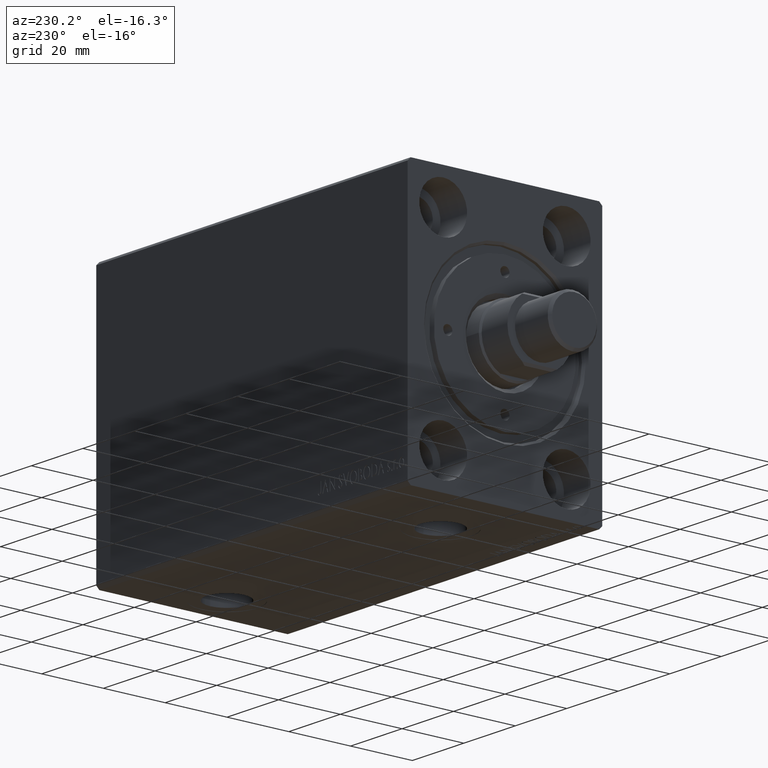
[diagram: clean part render]
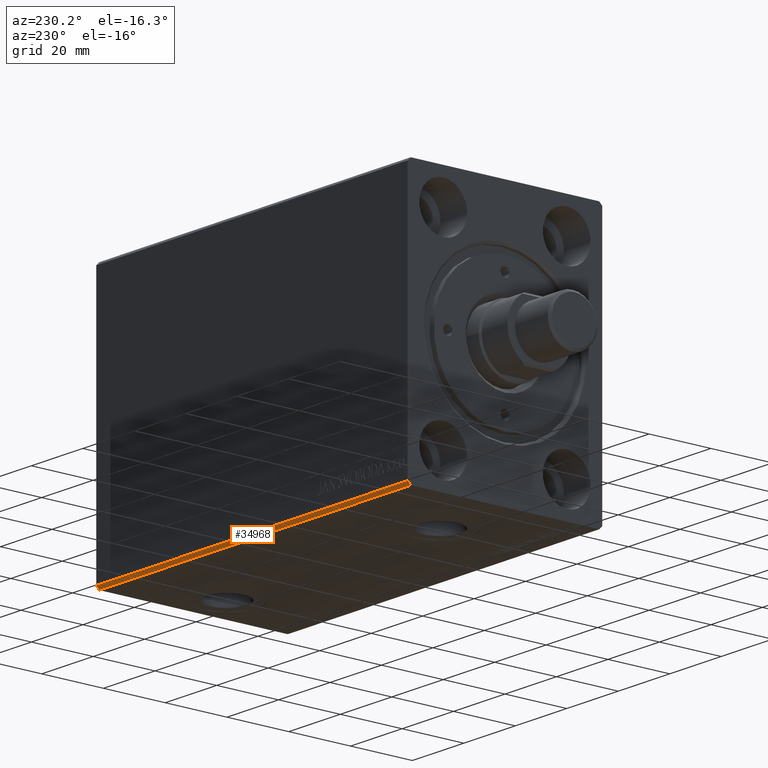
[diagram: same view with one face highlighted and labeled with its STEP entity id]
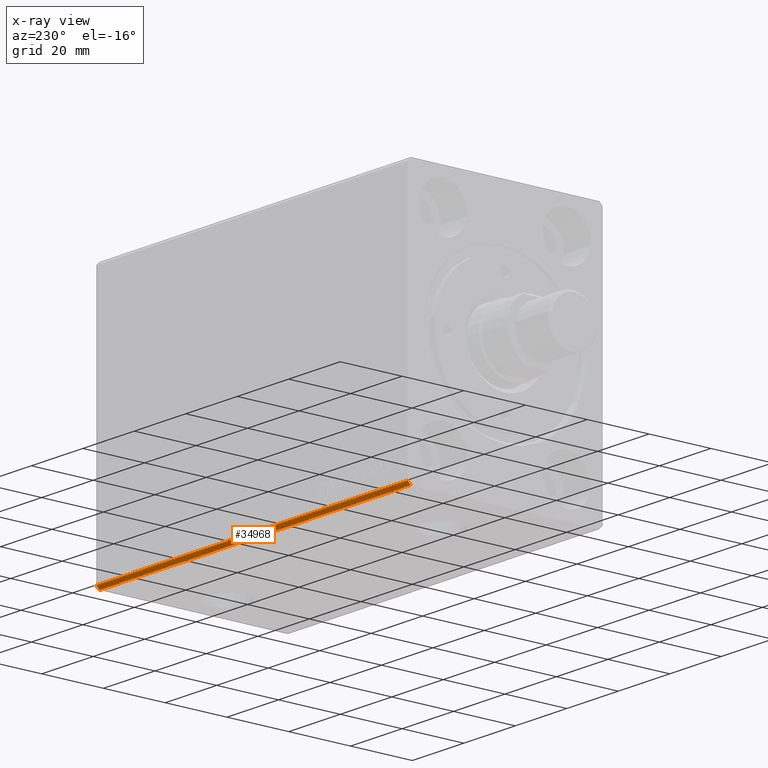
[diagram: x-ray of the same camera — body ghosted, the highlighted face saturated]
A machine part, auxiliary view. The second image highlights one B-rep face of the part: STEP entity #34968.
The next image is the same camera in x-ray: the body ghosted, the highlighted face saturated — about 0% of this face is hidden behind the body in this view.
In plain terms, the highlighted planar face has unit normal (0, -0.7071, 0.7071).
Its self-contained STEP definition (entity closure, byte-faithful):
#689 = VERTEX_POINT ( 'NONE', #42933 ) ;
#3563 = CARTESIAN_POINT ( 'NONE',  ( 121.0000000000000000, 30.50000000000001776, -42.50000000000000711 ) ) ;
#3857 = LINE ( 'NONE', #17568, #8601 ) ;
#4426 = ORIENTED_EDGE ( 'NONE', *, *, #31355, .T. ) ;
#4485 = VECTOR ( 'NONE', #43651, 1000.000000000000000 ) ;
#4505 = DIRECTION ( 'NONE',  ( 0.000000000000000000, 0.7071067811865462405, 0.7071067811865489050 ) ) ;
#5184 = FACE_OUTER_BOUND ( 'NONE', #5286, .T. ) ;
#5286 = EDGE_LOOP ( 'NONE', ( #4426, #28419, #7062, #26311 ) ) ;
#7062 = ORIENTED_EDGE ( 'NONE', *, *, #12767, .F. ) ;
#7512 = DIRECTION ( 'NONE',  ( -1.000000000000000000, -0.000000000000000000, -0.000000000000000000 ) ) ;
#8601 = VECTOR ( 'NONE', #33999, 999.9999999999998863 ) ;
#12767 = EDGE_CURVE ( 'NONE', #37183, #689, #21579, .T. ) ;
#12933 = VECTOR ( 'NONE', #7512, 1000.000000000000000 ) ;
#13026 = AXIS2_PLACEMENT_3D ( 'NONE', #16178, #22482, #39592 ) ;
#16178 = CARTESIAN_POINT ( 'NONE',  ( 121.0000000000000000, 30.50000000000001776, -42.50000000000000711 ) ) ;
#17568 = CARTESIAN_POINT ( 'NONE',  ( 0.000000000000000000, 30.50000000000001776, -42.50000000000000711 ) ) ;
#19572 = LINE ( 'NONE', #29920, #4485 ) ;
#20538 = CARTESIAN_POINT ( 'NONE',  ( 121.0000000000000000, 31.50000000000001421, -41.50000000000000711 ) ) ;
#21203 = LINE ( 'NONE', #20538, #12933 ) ;
#21579 = LINE ( 'NONE', #35310, #35874 ) ;
#22482 = DIRECTION ( 'NONE',  ( 0.000000000000000000, -0.7071067811865489050, 0.7071067811865462405 ) ) ;
#22568 = CARTESIAN_POINT ( 'NONE',  ( 0.000000000000000000, 31.50000000000001421, -41.50000000000000711 ) ) ;
#26311 = ORIENTED_EDGE ( 'NONE', *, *, #42328, .T. ) ;
#26848 = VERTEX_POINT ( 'NONE', #22568 ) ;
#27509 = CARTESIAN_POINT ( 'NONE',  ( 0.000000000000000000, 30.50000000000001776, -42.50000000000000711 ) ) ;
#28419 = ORIENTED_EDGE ( 'NONE', *, *, #31141, .F. ) ;
#29920 = CARTESIAN_POINT ( 'NONE',  ( 121.0000000000000000, 30.50000000000001776, -42.50000000000000711 ) ) ;
#31141 = EDGE_CURVE ( 'NONE', #689, #26848, #21203, .T. ) ;
#31355 = EDGE_CURVE ( 'NONE', #38869, #26848, #3857, .T. ) ;
#33999 = DIRECTION ( 'NONE',  ( 0.000000000000000000, 0.7071067811865462405, 0.7071067811865489050 ) ) ;
#34968 = ADVANCED_FACE ( 'NONE', ( #5184 ), #43403, .F. ) ;
#35310 = CARTESIAN_POINT ( 'NONE',  ( 121.0000000000000000, 30.50000000000001776, -42.50000000000000711 ) ) ;
#35874 = VECTOR ( 'NONE', #4505, 999.9999999999998863 ) ;
#37183 = VERTEX_POINT ( 'NONE', #3563 ) ;
#38869 = VERTEX_POINT ( 'NONE', #27509 ) ;
#39592 = DIRECTION ( 'NONE',  ( 0.000000000000000000, -0.7071067811865462405, -0.7071067811865489050 ) ) ;
#42328 = EDGE_CURVE ( 'NONE', #37183, #38869, #19572, .T. ) ;
#42933 = CARTESIAN_POINT ( 'NONE',  ( 121.0000000000000000, 31.50000000000001421, -41.50000000000000711 ) ) ;
#43403 = PLANE ( 'NONE',  #13026 ) ;
#43651 = DIRECTION ( 'NONE',  ( -1.000000000000000000, -0.000000000000000000, -0.000000000000000000 ) ) ;